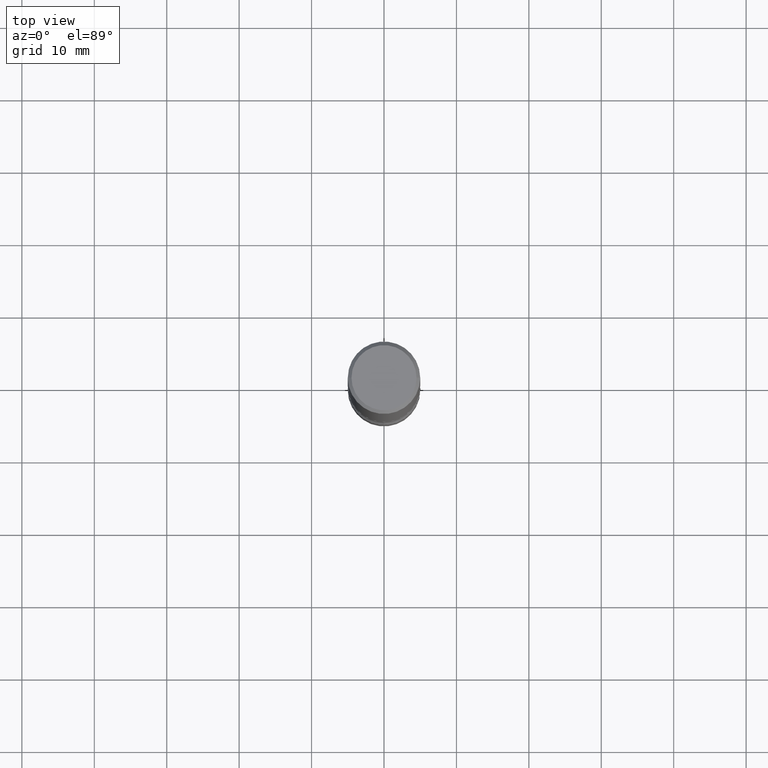
[diagram: clean part render]
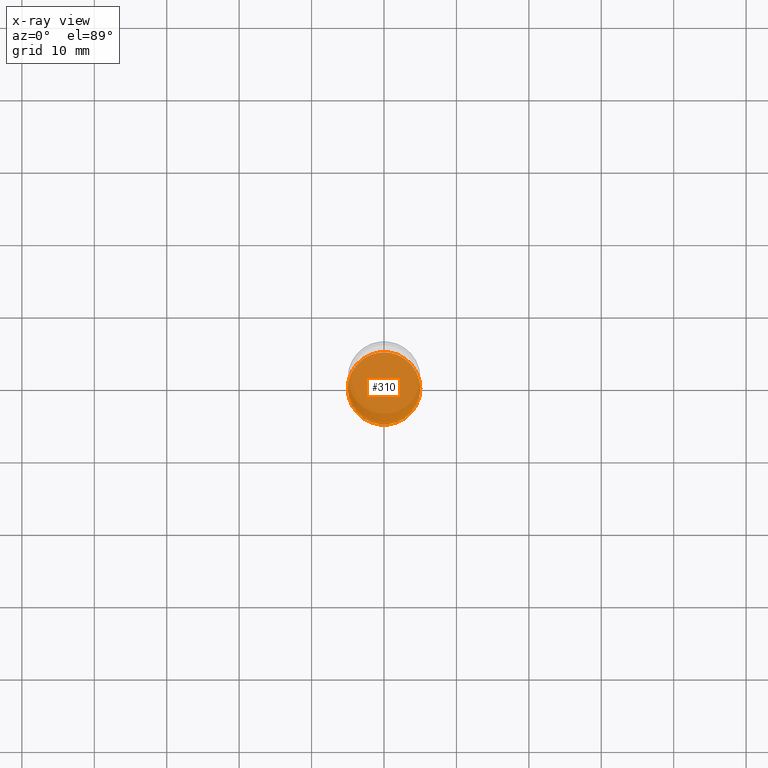
[diagram: x-ray — body ghosted, one internal face saturated and labeled with its STEP entity id]
A machine part, top view, then the same camera in x-ray: the body is ghosted and one INTERNAL B-rep face — a face not visible from any outside direction — is saturated and labeled: STEP entity #310.
In plain terms, the highlighted planar face has unit normal (0, -0, -1).
Its self-contained STEP definition (entity closure, byte-faithful):
#19 = ORIENTED_EDGE ( 'NONE', *, *, #44, .T. ) ;
#44 = EDGE_CURVE ( 'NONE', #557, #520, #413, .T. ) ;
#57 = CARTESIAN_POINT ( 'NONE',  ( 0.1968500000000001082, -1.319605372015766376E-14, -3.385799999999999699 ) ) ;
#71 = DIRECTION ( 'NONE',  ( 2.438088387897960049E-29, -3.491481338843145188E-15, -1.000000000000000000 ) ) ;
#75 = DIRECTION ( 'NONE',  ( -1.000000000000000000, 6.982962677686265922E-15, -4.876176775795935793E-29 ) ) ;
#80 = CARTESIAN_POINT ( 'NONE',  ( -0.1968500000000001082, -1.131622421632132460E-14, -3.385799999999999699 ) ) ;
#127 = DIRECTION ( 'NONE',  ( 1.000000000000000000, -6.982962677686265133E-15, 0.000000000000000000 ) ) ;
#143 = AXIS2_PLACEMENT_3D ( 'NONE', #165, #383, #127 ) ;
#150 = EDGE_LOOP ( 'NONE', ( #19, #434 ) ) ;
#165 = CARTESIAN_POINT ( 'NONE',  ( 8.279868283981634472E-29, -1.182145751705512057E-14, -3.385799999999999699 ) ) ;
#231 = CIRCLE ( 'NONE', #143, 0.1968500000000001082 ) ;
#239 = PLANE ( 'NONE',  #300 ) ;
#283 = CARTESIAN_POINT ( 'NONE',  ( 8.279868283981634472E-29, -1.182145751705512057E-14, -3.385799999999999699 ) ) ;
#300 = AXIS2_PLACEMENT_3D ( 'NONE', #283, #71, #75 ) ;
#310 = ADVANCED_FACE ( 'NONE', ( #328 ), #239, .F. ) ;
#324 = DIRECTION ( 'NONE',  ( 1.000000000000000000, -6.982962677686265133E-15, 0.000000000000000000 ) ) ;
#328 = FACE_OUTER_BOUND ( 'NONE', #150, .T. ) ;
#340 = AXIS2_PLACEMENT_3D ( 'NONE', #402, #363, #324 ) ;
#363 = DIRECTION ( 'NONE',  ( -2.445468806185136597E-29, 3.491481338843145583E-15, 1.000000000000000000 ) ) ;
#383 = DIRECTION ( 'NONE',  ( -2.445468806185136597E-29, 3.491481338843145583E-15, 1.000000000000000000 ) ) ;
#402 = CARTESIAN_POINT ( 'NONE',  ( 8.279868283981634472E-29, -1.182145751705512057E-14, -3.385799999999999699 ) ) ;
#413 = CIRCLE ( 'NONE', #340, 0.1968500000000001082 ) ;
#434 = ORIENTED_EDGE ( 'NONE', *, *, #473, .T. ) ;
#473 = EDGE_CURVE ( 'NONE', #520, #557, #231, .T. ) ;
#520 = VERTEX_POINT ( 'NONE', #80 ) ;
#557 = VERTEX_POINT ( 'NONE', #57 ) ;